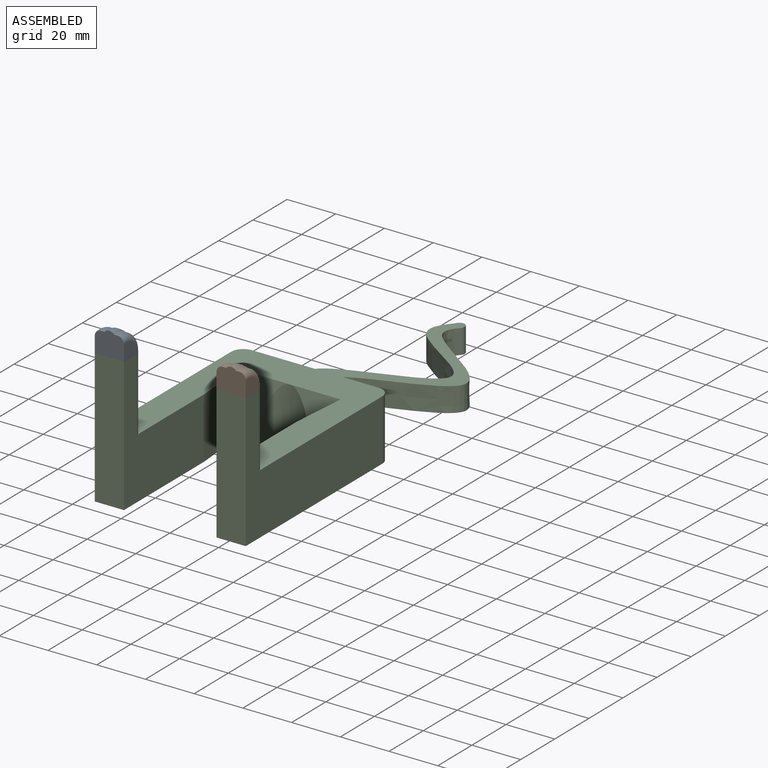
[diagram: assembled view]
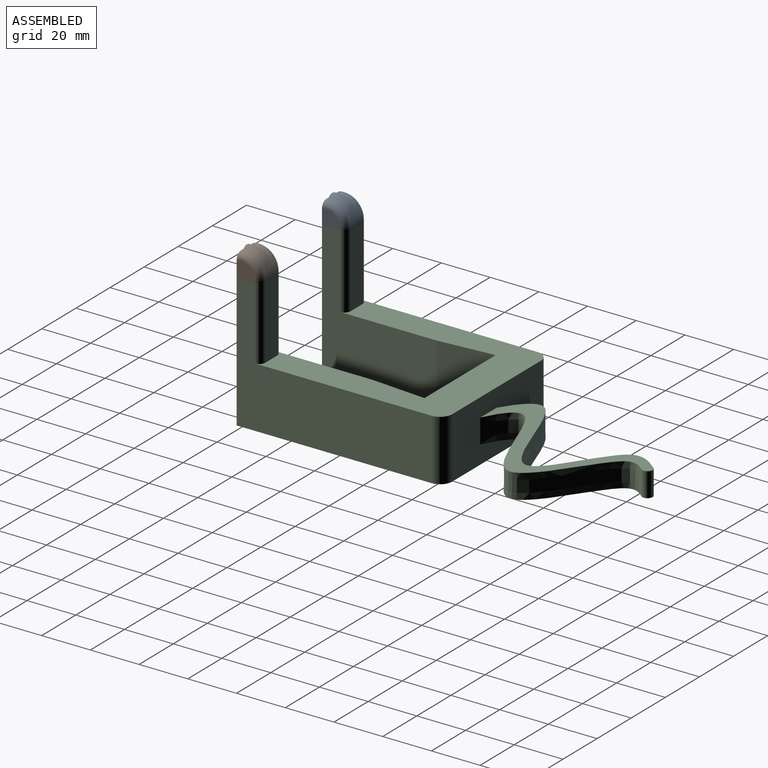
[diagram: assembled view, second angle]
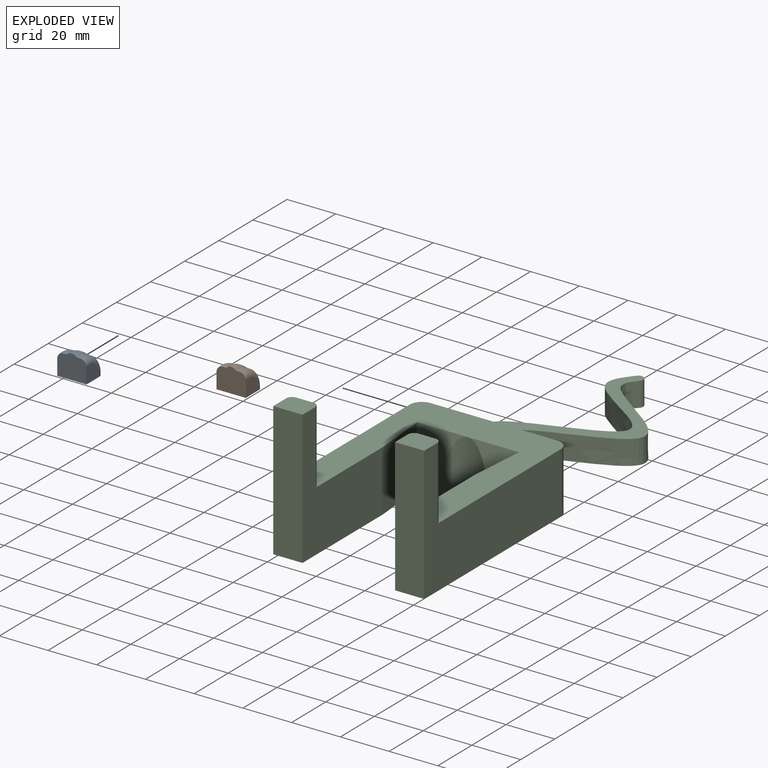
[diagram: exploded view]
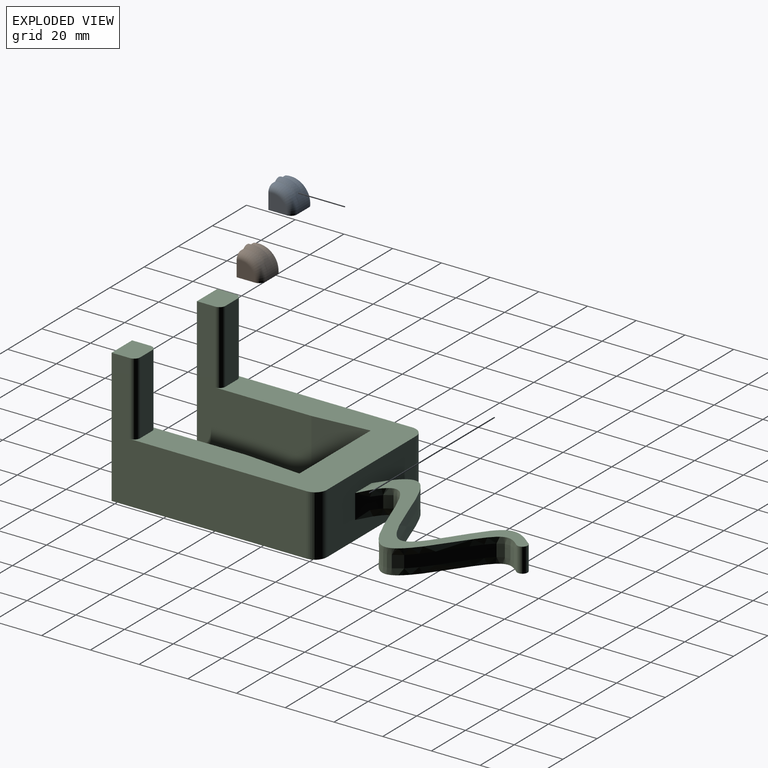
[diagram: exploded view, second angle]
ASSEMBLY  parts=3 mates=4
PART A: 14 faces, bbox 12.3x12.2x10.3 mm
  f0: plane 12x10mm, normal (0,0,1), area 117.3mm2, adj f1,f3,f4,f7,f11,f13
  f1: plane 12.35x10.27mm, normal (0,-1,0), area 107.9mm2, adj f0,f2,f4,f5,f6,f7,f8,f9
  f2: cylinder r=8.4mm len=10mm, axis (-1,0,0), area 22.2mm2, adj f1,f3,f9,f12
  f3: plane 7x0.75mm, normal (0,1,0), area 5.3mm2, adj f0,f2,f5,f6,f11,f13
  f4: plane 7.5x6.65mm, normal (-1,0,0), area 42.3mm2, adj f0,f1,f12,f13
  f5: cylinder r=9.21mm len=10mm, axis (-1,0,0), area 27.5mm2, adj f1,f3,f8,f9
  f6: cylinder r=8.4mm len=10mm, axis (-1,0,0), area 22.2mm2, adj f1,f3,f8,f10
  f7: plane 7.5x6.65mm, normal (1,0,0), area 42.3mm2, adj f0,f1,f10,f11
  f8: bspline ~11.14x9.22mm, area 11.8mm2, adj f1,f5,f6
  f9: bspline ~11.14x9.22mm, area 11.8mm2, adj f1,f2,f5
  f10: torus R=5.9mm, axis (1,0,0), area 53mm2, adj f1,f6,f7,f11
  f11: cylinder r=2.5mm len=2.5mm, axis (0,0,-1), area 2.9mm2, adj f0,f3,f7,f10
  f12: torus R=5.9mm, axis (1,0,0), area 53mm2, adj f1,f2,f4,f13
  f13: cylinder r=2.5mm len=2.5mm, axis (0,0,1), area 2.9mm2, adj f0,f3,f4,f12
PART B: same geometry as A
PART C: 29 faces, bbox 72.5x156.5x55 mm
  f0: plane 52x25mm, normal (0,1,0), area 1203.9mm2, adj f1,f9,f18,f19,f20,f22,f23,f24
  f1: plane 85x62mm, normal (0,0,-1), area 2674.1mm2, adj f0,f2,f3,f4,f5,f6,f7,f8
  f2: plane 25x20.92mm, normal (0,-0.98,0.2), area 303.2mm2, adj f1,f5,f9,f17
  f3: plane 55x47mm, normal (1,0,0), area 1400mm2, adj f1,f4,f9,f10,f11,f26
  f4: plane 25x23mm, normal (1,0.08,0), area 514.3mm2, adj f1,f3,f9,f16
  f5: plane 25x23mm, normal (-1,0.08,0), area 514.3mm2, adj f1,f2,f6,f9
  f6: plane 55x47mm, normal (-1,0,0), area 1400mm2, adj f1,f5,f9,f13,f14,f28
  f7: plane 80x55mm, normal (1,0,0), area 2225mm2, adj f1,f9,f13,f14,f18,f25
  f8: plane 80x55mm, normal (-1,0,0), area 2225mm2, adj f1,f9,f10,f11,f19,f27
  f9: plane 77.5x62mm, normal (0,0,1), area 2320.6mm2, adj f0,f2,f3,f4,f5,f6,f7,f8
  f10: plane 12x10mm, normal (0,0,1), area 117.3mm2, adj f3,f8,f11,f12,f26,f27
  f11: plane 55x12mm, normal (0,-1,0), area 660mm2, adj f1,f3,f8,f10
  f12: plane 30x7mm, normal (0,1,0), area 210mm2, adj f9,f10,f26,f27
  f13: plane 12x10mm, normal (0,0,1), area 117.3mm2, adj f6,f7,f14,f15,f25,f28
  f14: plane 55x12mm, normal (0,-1,0), area 660mm2, adj f1,f6,f7,f13
  f15: plane 30x7mm, normal (0,1,0), area 210mm2, adj f9,f13,f25,f28
  f16: plane 25x20.92mm, normal (0,-0.98,0.2), area 303.2mm2, adj f1,f4,f9,f17
  f17: cylinder r=19mm len=25.69mm, axis (0,0,-1), area 465.8mm2, adj f1,f2,f16
  f18: cylinder r=5mm len=25mm, axis (0,0,1), area 196.3mm2, adj f0,f1,f7,f9
  f19: cylinder r=5mm len=25mm, axis (0,0,-1), area 196.3mm2, adj f0,f1,f8,f9
  f20: extruded ~68.19x39.78mm, area 1121.9mm2, adj f0,f21,f23,f24
  f21: cylinder r=2.12mm len=10mm, axis (0,0,-1), area 68.8mm2, adj f20,f22,f23,f24
  f22: extruded ~70.39x41.79mm, area 1152.1mm2, adj f0,f21,f23,f24
  f23: plane 71.5x54.36mm, normal (0,0,1), area 619.3mm2, adj f0,f20,f21,f22
  f24: plane 71.5x54.36mm, normal (0,0,-1), area 619.3mm2, adj f0,f20,f21,f22
  f25: cylinder r=2.5mm len=30mm, axis (0,0,1), area 117.8mm2, adj f7,f9,f13,f15
  f26: cylinder r=2.5mm len=30mm, axis (0,0,1), area 117.8mm2, adj f3,f9,f10,f12
  f27: cylinder r=2.5mm len=30mm, axis (0,0,1), area 117.8mm2, adj f8,f9,f10,f12
  f28: cylinder r=2.5mm len=30mm, axis (0,0,1), area 117.8mm2, adj f6,f9,f13,f15
PLACE A rot(axis=(0,1,0),180deg) t=(0.29,-82.15,43.56)mm
PLACE B rot(axis=(0,1,0),180deg) t=(50.29,-82.15,43.56)mm
PLACE C t=(-11.71,-28.77,31.46)mm
MATE planar B.f0 <-> C.f13  axis (0,0,-1) through (44.29,-33.87,86.46)mm
MATE parallel B.f0 <-> C.f13  axis (0,0,-1) through (44.29,-33.87,86.46)mm
MATE parallel A.f1 <-> C.f11  axis (0,-1,0) through (-5.71,-38.77,90.97)mm
MATE planar A.f0 <-> C.f10  axis (0,0,-1) through (-5.71,-38.77,86.46)mm
